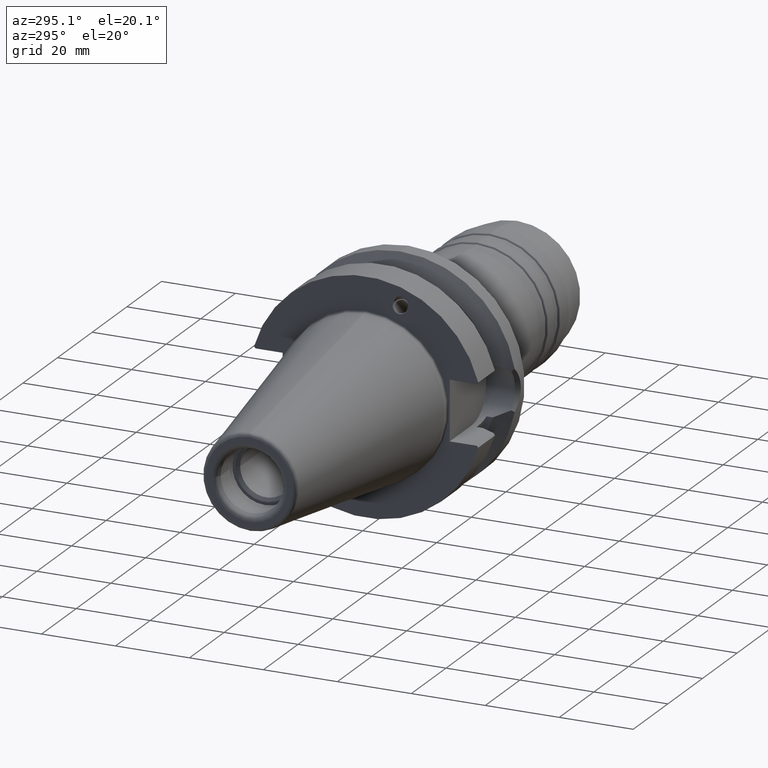
[diagram: clean part render]
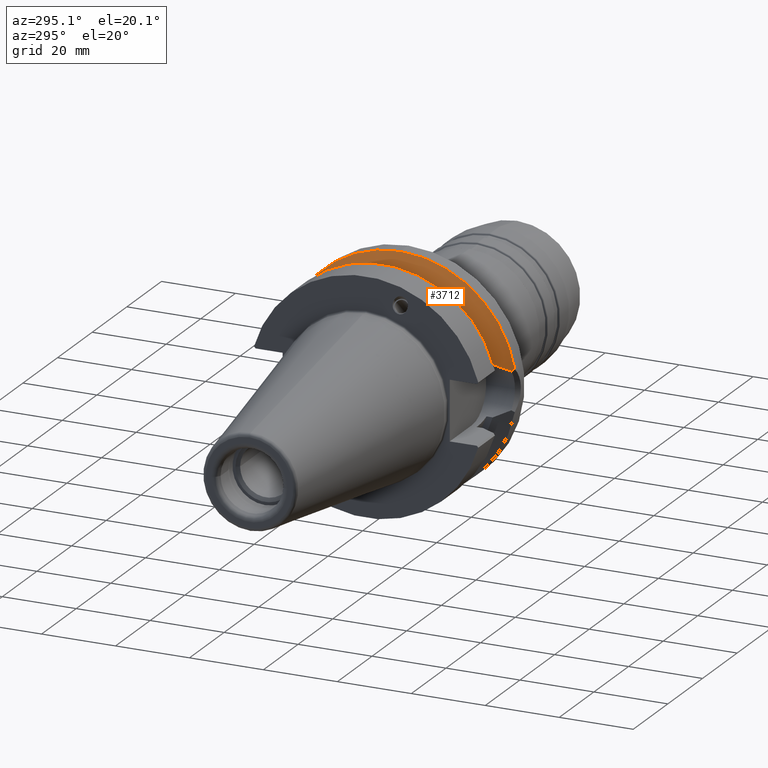
[diagram: same view with one face highlighted and labeled with its STEP entity id]
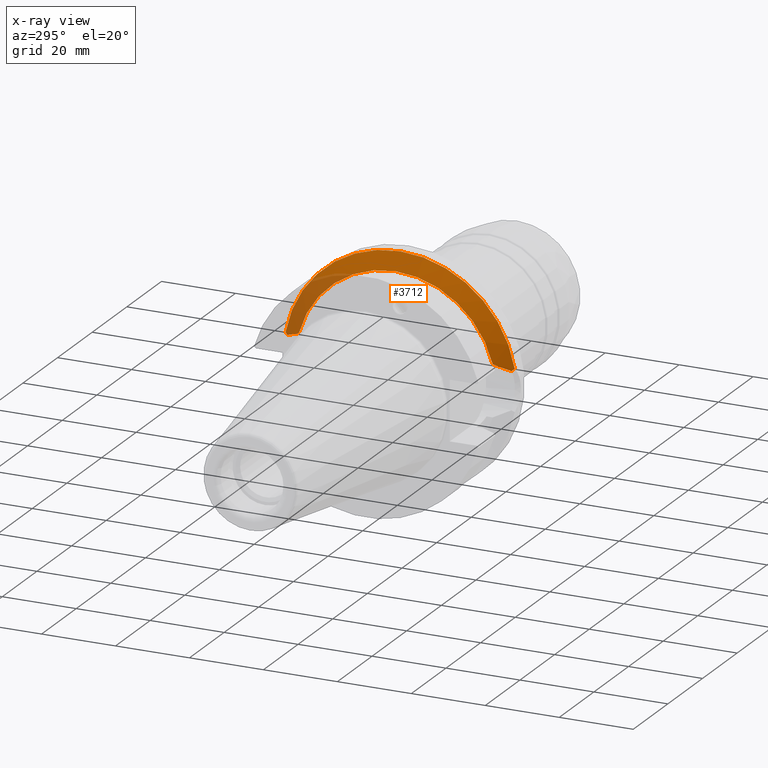
[diagram: x-ray of the same camera — body ghosted, the highlighted face saturated]
A machine part, auxiliary view. The second image highlights one B-rep face of the part: STEP entity #3712.
The next image is the same camera in x-ray: the body ghosted, the highlighted face saturated — about 20% of this face is hidden behind the body in this view.
In plain terms, the highlighted conical surface has half-angle 60 deg.
Its self-contained STEP definition (entity closure, byte-faithful):
#874=CARTESIAN_POINT('',(2.16309635E1,0.E0,0.E0));
#875=DIRECTION('',(1.E0,0.E0,0.E0));
#876=DIRECTION('',(0.E0,0.E0,1.E0));
#877=AXIS2_PLACEMENT_3D('',#874,#875,#876);
#879=CARTESIAN_POINT('',(1.91E1,-2.622423715090E1,6.897825744392E0));
#880=CARTESIAN_POINT('',(1.937816045766E1,-2.676643204292E1,6.730473604449E0));
#881=CARTESIAN_POINT('',(1.990303269829E1,-2.779127514901E1,6.368641630073E0));
#882=CARTESIAN_POINT('',(2.059086834754E1,-2.913753076905E1,5.766648249127E0));
#883=CARTESIAN_POINT('',(2.099357945593E1,-2.992716271349E1,5.325812749184E0));
#884=CARTESIAN_POINT('',(2.117998131741E1,-3.029289531603E1,5.098022438631E0));
#886=CARTESIAN_POINT('',(2.16309635E1,3.098871085802E1,5.652415356123E0));
#887=CARTESIAN_POINT('',(2.155414334301E1,3.087051438261E1,5.558911847172E0));
#888=CARTESIAN_POINT('',(2.140215551002E1,3.063633978232E1,5.373035076681E0));
#889=CARTESIAN_POINT('',(2.125348414074E1,3.040662765083E1,5.189343646915E0));
#890=CARTESIAN_POINT('',(2.117998131741E1,3.029289531603E1,5.098022438631E0));
#892=CARTESIAN_POINT('',(2.16309635E1,0.E0,0.E0));
#893=DIRECTION('',(1.E0,0.E0,0.E0));
#894=DIRECTION('',(0.E0,9.837685986673E-1,1.794417573372E-1));
#895=AXIS2_PLACEMENT_3D('',#892,#893,#894);
#930=CARTESIAN_POINT('',(2.117998131741E1,-3.029289531603E1,5.098022438631E0));
#931=CARTESIAN_POINT('',(2.125097782396E1,-3.040274957858E1,5.186229754596E0));
#932=CARTESIAN_POINT('',(2.139711972524E1,-3.062856992174E1,5.366845705380E0));
#933=CARTESIAN_POINT('',(2.155161500107E1,-3.086662424338E1,5.555834414729E0));
#934=CARTESIAN_POINT('',(2.16309635E1,-3.098871085802E1,5.652415356123E0));
#1069=CARTESIAN_POINT('',(1.91E1,0.E0,0.E0));
#1070=DIRECTION('',(1.E0,0.E0,0.E0));
#1071=DIRECTION('',(0.E0,9.671043850984E-1,2.543798504666E-1));
#1072=AXIS2_PLACEMENT_3D('',#1069,#1070,#1071);
#1094=CARTESIAN_POINT('',(2.117998131741E1,3.029289531603E1,5.098022438631E0));
#1095=CARTESIAN_POINT('',(2.104302031893E1,3.002416890941E1,5.265394095386E0));
#1096=CARTESIAN_POINT('',(2.075150822612E1,2.945248076159E1,5.593999777963E0));
#1097=CARTESIAN_POINT('',(2.026350284716E1,2.849665761898E1,6.060198415023E0));
#1098=CARTESIAN_POINT('',(1.971773001892E1,2.742935446498E1,6.499361055365E0));
#1099=CARTESIAN_POINT('',(1.931267643324E1,2.663878951656E1,6.769871338085E0));
#1100=CARTESIAN_POINT('',(1.91E1,2.622423715090E1,6.897825744392E0));
#1158=CARTESIAN_POINT('',(2.16309635E1,3.098871085802E1,5.652415356123E0));
#2016=CARTESIAN_POINT('',(1.91E1,2.622423715090E1,6.897825744392E0));
#2018=VERTEX_POINT('',#2016);
#2038=CARTESIAN_POINT('',(2.16309635E1,0.E0,3.15E1));
#2039=VERTEX_POINT('',#2038);
#2104=VERTEX_POINT('',#1158);
#2111=VERTEX_POINT('',#890);
#2152=VERTEX_POINT('',#930);
#2153=VERTEX_POINT('',#934);
#2160=CARTESIAN_POINT('',(1.91E1,-2.622423715090E1,6.897825744392E0));
#2162=VERTEX_POINT('',#2160);
#3692=CARTESIAN_POINT('',(2.036548175E1,0.E0,0.E0));
#3693=DIRECTION('',(1.E0,0.E0,0.E0));
#3694=DIRECTION('',(0.E0,0.E0,1.E0));
#3695=AXIS2_PLACEMENT_3D('',#3692,#3693,#3694);
#3696=CONICAL_SURFACE('',#3695,2.930812131295E1,6.E1);
#3697=ORIENTED_EDGE('',*,*,#3682,.T.);
#3699=ORIENTED_EDGE('',*,*,#3698,.F.);
#3701=ORIENTED_EDGE('',*,*,#3700,.F.);
#3703=ORIENTED_EDGE('',*,*,#3702,.F.);
#3705=ORIENTED_EDGE('',*,*,#3704,.F.);
#3707=ORIENTED_EDGE('',*,*,#3706,.F.);
#3709=ORIENTED_EDGE('',*,*,#3708,.T.);
#3710=EDGE_LOOP('',(#3697,#3699,#3701,#3703,#3705,#3707,#3709));
#3711=FACE_OUTER_BOUND('',#3710,.F.);
#3712=ADVANCED_FACE('',(#3711),#3696,.T.);
#878=CIRCLE('',#877,3.15E1);
#885=B_SPLINE_CURVE_WITH_KNOTS('',3,(#879,#880,#881,#882,#883,#884),
.UNSPECIFIED.,.F.,.F.,(4,1,1,4),(0.E0,3.333333333333E-1,6.666666666667E-1,1.E0),
.UNSPECIFIED.);
#891=B_SPLINE_CURVE_WITH_KNOTS('',3,(#886,#887,#888,#889,#890),.UNSPECIFIED.,
.F.,.F.,(4,1,4),(0.E0,5.E-1,1.E0),.UNSPECIFIED.);
#896=CIRCLE('',#895,3.15E1);
#935=B_SPLINE_CURVE_WITH_KNOTS('',3,(#930,#931,#932,#933,#934),.UNSPECIFIED.,
.F.,.F.,(4,1,4),(0.E0,5.E-1,1.E0),.UNSPECIFIED.);
#1073=CIRCLE('',#1072,2.711624262590E1);
#1101=B_SPLINE_CURVE_WITH_KNOTS('',3,(#1094,#1095,#1096,#1097,#1098,#1099,
#1100),.UNSPECIFIED.,.F.,.F.,(4,1,1,1,4),(0.E0,2.5E-1,5.E-1,7.5E-1,1.E0),
.UNSPECIFIED.);
#3682=EDGE_CURVE('',#2039,#2153,#878,.T.);
#3698=EDGE_CURVE('',#2152,#2153,#935,.T.);
#3700=EDGE_CURVE('',#2162,#2152,#885,.T.);
#3702=EDGE_CURVE('',#2018,#2162,#1073,.T.);
#3704=EDGE_CURVE('',#2111,#2018,#1101,.T.);
#3706=EDGE_CURVE('',#2104,#2111,#891,.T.);
#3708=EDGE_CURVE('',#2104,#2039,#896,.T.);